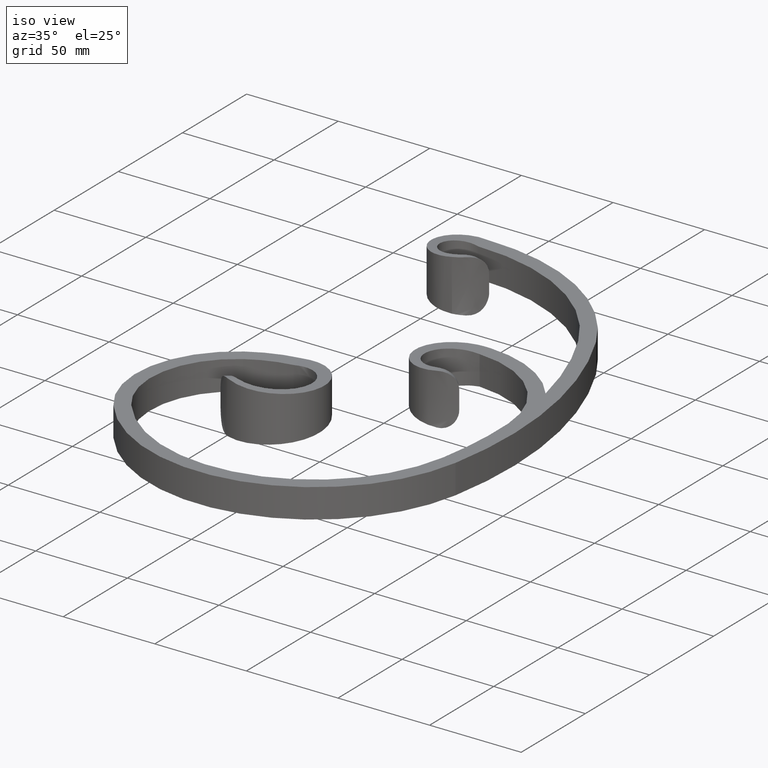
[diagram: clean part render]
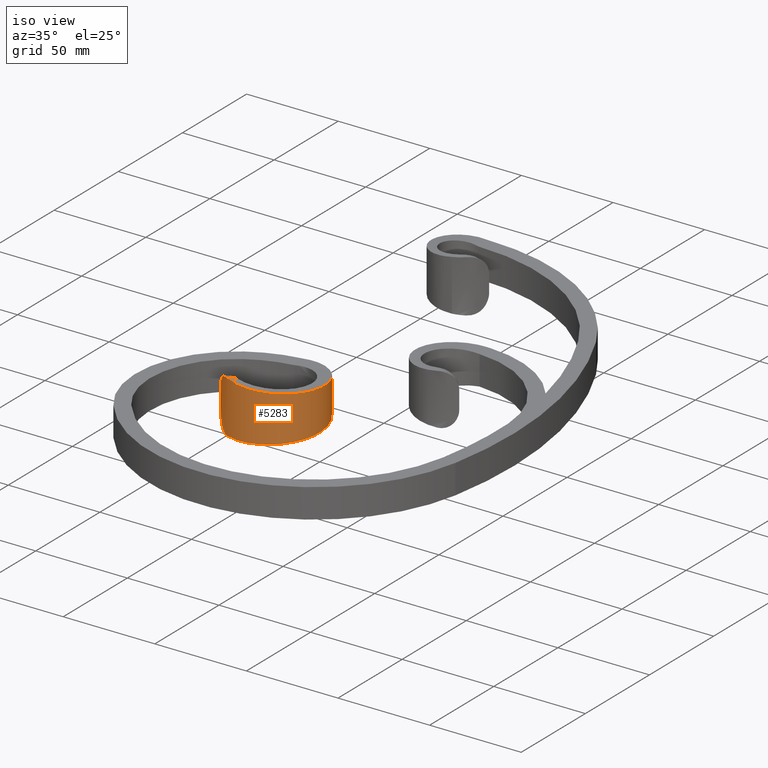
[diagram: same view with one face highlighted and labeled with its STEP entity id]
A machine part, iso view. The second image highlights one B-rep face of the part: STEP entity #5283.
In plain terms, the highlighted face is a freeform B-spline surface patch.
Its self-contained STEP definition (entity closure, byte-faithful):
#133 = CARTESIAN_POINT ( 'NONE',  ( -33.57802503120093718, -12.59550692411791850, -8.146049056091735352 ) ) ;
#175 = CARTESIAN_POINT ( 'NONE',  ( -16.58922973311246807, -57.15209682906560573, -12.37648792760983874 ) ) ;
#223 = CARTESIAN_POINT ( 'NONE',  ( -12.58456249546032701, -21.92146221588376775, -9.751548640448486793 ) ) ;
#318 = CARTESIAN_POINT ( 'NONE',  ( -7.389778684455293956, -40.35461719440599637, 11.06405389463266609 ) ) ;
#376 = CARTESIAN_POINT ( 'NONE',  ( -51.65111107797437029, -53.56969024216363096, -4.337172076613514449 ) ) ;
#398 = CARTESIAN_POINT ( 'NONE',  ( -7.482887672515622590, -33.82559137967507468, -10.62652855248155248 ) ) ;
#467 = EDGE_CURVE ( 'NONE', #5590, #12942, #11741, .T. ) ;
#487 = CARTESIAN_POINT ( 'NONE',  ( -33.57802503120093718, -12.59550692411791850, -8.146049056091735352 ) ) ;
#535 = CARTESIAN_POINT ( 'NONE',  ( -49.69771532654036861, -55.53008887871815347, 11.23744044811257226 ) ) ;
#635 = CARTESIAN_POINT ( 'NONE',  ( -51.38976015461346236, -53.83704935560363225, 7.064410662764352367 ) ) ;
#838 = CARTESIAN_POINT ( 'NONE',  ( -46.32424225235733672, -58.34129908344313264, -13.88447985391884920 ) ) ;
#880 = CARTESIAN_POINT ( 'NONE',  ( -51.60032325678813692, -53.62167709722110231, -5.723051855419111433 ) ) ;
#951 = CARTESIAN_POINT ( 'NONE',  ( -42.42558938902890731, -60.46293557177023814, 14.21490081822890694 ) ) ;
#1034 = CARTESIAN_POINT ( 'NONE',  ( -9.270810098169967262, -27.54592833835636512, 10.18907638484308364 ) ) ;
#1183 = CARTESIAN_POINT ( 'NONE',  ( -34.93879334652178414, -62.65775861665424884, -13.68900597043120904 ) ) ;
#1246 = CARTESIAN_POINT ( 'NONE',  ( -51.65111107797437739, -53.56969024216363806, 4.337172076613521554 ) ) ;
#1324 = CARTESIAN_POINT ( 'NONE',  ( -8.945702659626393327, -46.69526478340217324, 11.50150815269346616 ) ) ;
#1334 = EDGE_CURVE ( 'NONE', #12511, #10819, #10597, .T. ) ;
#1364 = CARTESIAN_POINT ( 'NONE',  ( -22.15981873790846635, -60.55987571485508880, -12.81401223314161797 ) ) ;
#1537 = CARTESIAN_POINT ( 'NONE',  ( -29.23358853215684050, -12.36335269155290284, -8.439188108444961145 ) ) ;
#1592 = CARTESIAN_POINT ( 'NONE',  ( -46.32395167996784124, -58.34149954532197313, 13.88458562790976636 ) ) ;
#1827 = CARTESIAN_POINT ( 'NONE',  ( -46.04441014813580324, -58.52884284513113045, -13.97483996255037830 ) ) ;
#1919 = CARTESIAN_POINT ( 'NONE',  ( -50.18416266541709803, -55.05439913324737944, -10.45028677107756643 ) ) ;
#1965 = CARTESIAN_POINT ( 'NONE',  ( -51.65111107797436318, -53.56969024216361674, -5.036296148332953138 ) ) ;
#2086 = CARTESIAN_POINT ( 'NONE',  ( -22.15981873790845214, -60.55987571485509591, 12.81401223314161797 ) ) ;
#2318 = CARTESIAN_POINT ( 'NONE',  ( -16.58922973311247517, -57.15209682906560573, 12.37648792760983874 ) ) ;
#2361 = ORIENTED_EDGE ( 'NONE', *, *, #3305, .T. ) ;
#2365 = CARTESIAN_POINT ( 'NONE',  ( -50.14052950395719677, -55.11539507971288998, -14.85438673154449951 ) ) ;
#2516 = EDGE_CURVE ( 'NONE', #12511, #9966, #13270, .T. ) ;
#2638 = DIRECTION ( 'NONE',  ( 0.000000000000000000, 0.000000000000000000, 1.000000000000000000 ) ) ;
#2713 = CARTESIAN_POINT ( 'NONE',  ( -43.03120126583589666, -60.18579818496611011, 14.25978458945053795 ) ) ;
#2796 = CARTESIAN_POINT ( 'NONE',  ( -47.12942327838260326, -57.77311632037795164, 13.56476221883439237 ) ) ;
#2878 = CARTESIAN_POINT ( 'NONE',  ( -43.66510377913966323, -59.89571456416294382, -14.30676506733341569 ) ) ;
#2946 = CARTESIAN_POINT ( 'NONE',  ( -17.24778867897662593, -17.34423786836316239, 9.314102502621468105 ) ) ;
#3014 = CARTESIAN_POINT ( 'NONE',  ( -51.38873243551046244, -53.83810034985869919, -7.069791083932366327 ) ) ;
#3021 = ORIENTED_EDGE ( 'NONE', *, *, #1334, .F. ) ;
#3049 = CARTESIAN_POINT ( 'NONE',  ( -50.14052950395720387, -55.11539507971288998, 14.85438673154449951 ) ) ;
#3094 = CARTESIAN_POINT ( 'NONE',  ( -41.28444365421606932, -61.19213476982351807, 14.12637287712167833 ) ) ;
#3279 = CARTESIAN_POINT ( 'NONE',  ( -17.24778867897662593, -17.34423786836316239, 9.314102502621468105 ) ) ;
#3305 = EDGE_CURVE ( 'NONE', #3439, #5590, #11931, .T. ) ;
#3325 = CARTESIAN_POINT ( 'NONE',  ( -9.270810098169967262, -27.54592833835636512, 10.18907638484308364 ) ) ;
#3380 = CARTESIAN_POINT ( 'NONE',  ( -28.40687138129084843, -62.45132643619107427, -13.25146469080638312 ) ) ;
#3429 = CARTESIAN_POINT ( 'NONE',  ( -7.389778684455301061, -40.35461719440599637, -11.06405389463266609 ) ) ;
#3439 = VERTEX_POINT ( 'NONE', #376 ) ;
#3475 = CARTESIAN_POINT ( 'NONE',  ( -35.74252970856243650, -12.71117184921621757, 7.999999999999998224 ) ) ;
#3746 = CARTESIAN_POINT ( 'NONE',  ( -49.52163755471740814, -55.69929994582214050, 11.48277636815653047 ) ) ;
#3900 = CARTESIAN_POINT ( 'NONE',  ( -48.95161631099333732, -56.23263187921923389, -12.16463710116658170 ) ) ;
#4017 = CARTESIAN_POINT ( 'NONE',  ( -16.58922973311246096, -57.15209682906561284, 12.37648792760983874 ) ) ;
#4037 = CARTESIAN_POINT ( 'NONE',  ( -49.52007537389950187, -55.70078549468676243, -11.48482998160070778 ) ) ;
#4067 = CARTESIAN_POINT ( 'NONE',  ( -22.15981873790845569, -60.55987571485509591, 12.81401223314161797 ) ) ;
#4082 = CARTESIAN_POINT ( 'NONE',  ( -51.15158491220703496, -54.08024678968892829, -8.059377528972271776 ) ) ;
#4159 = CARTESIAN_POINT ( 'NONE',  ( -34.93879334652176993, -62.65775861665427726, 13.68900597043121259 ) ) ;
#4204 = CARTESIAN_POINT ( 'NONE',  ( -12.09784961112606361, -52.41389592465710479, 11.93903229814728739 ) ) ;
#4255 = CARTESIAN_POINT ( 'NONE',  ( -51.65111107797437739, -53.56969024216363096, 15.00000000000000000 ) ) ;
#4401 = CARTESIAN_POINT ( 'NONE',  ( -12.09784961112606894, -52.41389592465710479, -11.93903229814728739 ) ) ;
#4491 = CARTESIAN_POINT ( 'NONE',  ( -34.93879334652178414, -62.65775861665424884, -13.68900597043120904 ) ) ;
#4497 = EDGE_CURVE ( 'NONE', #9966, #3439, #5631, .T. ) ;
#4506 = B_SPLINE_SURFACE_WITH_KNOTS ( 'NONE', 1, 3, ( 
 ( #4255, #3049, #6244, #3094, #4159, #11532, #2086, #2318, #7588, #1324, #318, #12870, #3325, #6566, #3279, #6521, #11906, #7682, #3475 ),
 ( #9698, #2365, #4548, #11865, #1183, #3380, #1364, #175, #4401, #5418, #3429, #8698, #11716, #223, #9749, #5511, #12918, #133, #10759 ) ),
 .UNSPECIFIED., .F., .F., .F.,
 ( 2, 2 ),
 ( 4, 1, 1, 1, 1, 1, 1, 1, 1, 1, 1, 1, 1, 1, 1, 1, 4 ),
 ( 0.000000000000000000, 1.000000000000000000 ),
 ( 0.000000000000000000, 0.06578038003364708453, 0.1311041039287538235, 0.1960029423599547738, 0.2604628809791652011, 0.3244895749311803579, 0.3880773804705942576, 0.4512321079147543212, 0.5139479616482263147, 0.5762309114961822187, 0.6380750062848293824, 0.6994863895189032954, 0.7604589409083903906, 0.8209989876387825403, 0.8811002311339174442, 0.9407612227950703510, 1.000000000000000000 ),
 .UNSPECIFIED. ) ;
#4542 = CARTESIAN_POINT ( 'NONE',  ( -22.91004152761001578, -14.12384657492264139, -8.876577550080872570 ) ) ;
#4548 = CARTESIAN_POINT ( 'NONE',  ( -47.12985301392313175, -58.19607426644882509, -14.56417106129098826 ) ) ;
#4721 = CARTESIAN_POINT ( 'NONE',  ( -35.74252970856243650, -12.71117184921621757, -7.999999999999998224 ) ) ;
#4767 = CARTESIAN_POINT ( 'NONE',  ( -50.03038046193676536, -55.20626300641914241, 10.71888026741935995 ) ) ;
#4810 = CARTESIAN_POINT ( 'NONE',  ( -43.03120126583587535, -60.18579818496609590, -14.25978458945053440 ) ) ;
#4965 = VECTOR ( 'NONE', #9331, 1000.000000000000000 ) ;
#4969 = CARTESIAN_POINT ( 'NONE',  ( -50.02744026462465143, -55.20914693026994513, -10.72374979378077420 ) ) ;
#5132 = CARTESIAN_POINT ( 'NONE',  ( -7.389778684455293956, -40.35461719440599637, 11.06405389463266609 ) ) ;
#5150 = CARTESIAN_POINT ( 'NONE',  ( -50.61612990117857436, -54.62438412711950519, -9.606162419489397308 ) ) ;
#5181 = CARTESIAN_POINT ( 'NONE',  ( -12.58456249546032701, -21.92146221588375710, 9.751548640448486793 ) ) ;
#5226 = CARTESIAN_POINT ( 'NONE',  ( -29.23358853215684050, -12.36335269155290462, 8.439188108444961145 ) ) ;
#5283 = ADVANCED_FACE ( 'NONE', ( #8113 ), #4506, .T. ) ;
#5418 = CARTESIAN_POINT ( 'NONE',  ( -8.945702659626400433, -46.69526478340217324, -11.50150815269346616 ) ) ;
#5511 = CARTESIAN_POINT ( 'NONE',  ( -22.91004152761001578, -14.12384657492264139, -8.876577550080872570 ) ) ;
#5590 = VERTEX_POINT ( 'NONE', #4810 ) ;
#5631 = LINE ( 'NONE', #10357, #4965 ) ;
#5636 = CARTESIAN_POINT ( 'NONE',  ( -7.389778684455301061, -40.35461719440599637, -11.06405389463266609 ) ) ;
#5783 = CARTESIAN_POINT ( 'NONE',  ( -48.53574988930402156, -56.60646299001678017, 12.57251210564871791 ) ) ;
#5833 = CARTESIAN_POINT ( 'NONE',  ( -50.85828119142266246, -54.37868623472515139, 9.004805861246554244 ) ) ;
#5881 = CARTESIAN_POINT ( 'NONE',  ( -43.66511602782529877, -59.89570895897440295, 14.30676597512143466 ) ) ;
#5915 = ORIENTED_EDGE ( 'NONE', *, *, #467, .T. ) ;
#5965 = CARTESIAN_POINT ( 'NONE',  ( -45.46771584236165609, -58.89499453847879806, 14.12134407233585343 ) ) ;
#6042 = CARTESIAN_POINT ( 'NONE',  ( -48.31467618011459564, -56.80010543915676635, -12.76389281942718590 ) ) ;
#6057 = CARTESIAN_POINT ( 'NONE',  ( -51.65111107797437739, -53.56969024216363806, 4.337172076613521554 ) ) ;
#6200 = CARTESIAN_POINT ( 'NONE',  ( -39.80956800831938835, -61.53277959153943755, 14.02471870966516576 ) ) ;
#6215 = CARTESIAN_POINT ( 'NONE',  ( -51.65111107797437029, -53.56969024216363096, -4.337172076613514449 ) ) ;
#6244 = CARTESIAN_POINT ( 'NONE',  ( -47.12985301392313175, -58.19607426644882509, 14.56417106129099359 ) ) ;
#6282 = CARTESIAN_POINT ( 'NONE',  ( -22.91004152761001578, -14.12384657492263962, 8.876577550080872570 ) ) ;
#6494 = EDGE_LOOP ( 'NONE', ( #13082, #2361, #5915, #12546, #3021, #11311 ) ) ;
#6521 = CARTESIAN_POINT ( 'NONE',  ( -22.91004152761001578, -14.12384657492263962, 8.876577550080872570 ) ) ;
#6566 = CARTESIAN_POINT ( 'NONE',  ( -12.58456249546032701, -21.92146221588375710, 9.751548640448486793 ) ) ;
#6695 = CARTESIAN_POINT ( 'NONE',  ( -22.15981873790846635, -60.55987571485508880, -12.81401223314161797 ) ) ;
#6737 = CARTESIAN_POINT ( 'NONE',  ( -17.24778867897662593, -17.34423786836316239, -9.314102502621468105 ) ) ;
#6927 = CARTESIAN_POINT ( 'NONE',  ( -51.24110454385249369, -53.98889037599329299, 7.724087325586279640 ) ) ;
#7015 = CARTESIAN_POINT ( 'NONE',  ( -47.62421800491791402, -57.38308605822610531, 13.28585943230583410 ) ) ;
#7127 = CARTESIAN_POINT ( 'NONE',  ( -51.23902106977845250, -53.99101721562937684, -7.732495953222609408 ) ) ;
#7204 = CARTESIAN_POINT ( 'NONE',  ( -35.74252970856243650, -12.71117184921621224, 7.999999999999998224 ) ) ;
#7388 = LINE ( 'NONE', #8930, #12996 ) ;
#7588 = CARTESIAN_POINT ( 'NONE',  ( -12.09784961112605828, -52.41389592465710479, 11.93903229814728739 ) ) ;
#7682 = CARTESIAN_POINT ( 'NONE',  ( -33.57802503120093718, -12.59550692411791850, 8.146049056091735352 ) ) ;
#7758 = CARTESIAN_POINT ( 'NONE',  ( -9.270810098169972591, -27.54592833835636156, -10.18907638484308364 ) ) ;
#7847 = CARTESIAN_POINT ( 'NONE',  ( -35.74252970856243650, -12.71117184921621757, -7.999999999999998224 ) ) ;
#7898 = CARTESIAN_POINT ( 'NONE',  ( -44.28057228360417241, -59.58120849345448278, 14.29377872933465632 ) ) ;
#7990 = CARTESIAN_POINT ( 'NONE',  ( -51.45154824136530891, -53.77385692579682797, 6.731249855395117443 ) ) ;
#8113 = FACE_OUTER_BOUND ( 'NONE', #6494, .T. ) ;
#8149 = CARTESIAN_POINT ( 'NONE',  ( -47.62415811056440873, -57.38313669615384782, -13.28590494145513290 ) ) ;
#8194 = CARTESIAN_POINT ( 'NONE',  ( -47.12940431498353888, -57.77312053451556295, -13.56475053502450656 ) ) ;
#8244 = CARTESIAN_POINT ( 'NONE',  ( -50.85685575519531199, -54.38012969642286976, -9.008275531121539004 ) ) ;
#8698 = CARTESIAN_POINT ( 'NONE',  ( -7.482887672515622590, -33.82559137967507468, -10.62652855248155248 ) ) ;
#8733 = CARTESIAN_POINT ( 'NONE',  ( -28.40687138129084843, -62.45132643619107427, -13.25146469080638312 ) ) ;
#8767 = CARTESIAN_POINT ( 'NONE',  ( -35.74252970856243650, -12.71117184921621224, 7.999999999999998224 ) ) ;
#8930 = CARTESIAN_POINT ( 'NONE',  ( -35.74252970856243650, -12.71117184921621757, -7.999999999999998224 ) ) ;
#8959 = CARTESIAN_POINT ( 'NONE',  ( -45.17458707877819535, -59.07132261474132662, 14.17672747873761985 ) ) ;
#9137 = CARTESIAN_POINT ( 'NONE',  ( -48.31464373914333521, -56.80013286372813042, 12.76391745923927701 ) ) ;
#9199 = CARTESIAN_POINT ( 'NONE',  ( -45.46810912897819179, -58.89475636747481957, -14.12126670769739967 ) ) ;
#9244 = CARTESIAN_POINT ( 'NONE',  ( -45.17488329144869397, -59.07114919141156406, -14.17668034118320541 ) ) ;
#9272 = CARTESIAN_POINT ( 'NONE',  ( -34.93879334652176993, -62.65775861665427726, 13.68900597043120904 ) ) ;
#9331 = DIRECTION ( 'NONE',  ( 2.312964634635742957E-16, 2.312964634635742957E-16, -1.000000000000000000 ) ) ;
#9698 = CARTESIAN_POINT ( 'NONE',  ( -51.65111107797437029, -53.56969024216362385, -15.00000000000000000 ) ) ;
#9743 = CARTESIAN_POINT ( 'NONE',  ( -42.42558938902889309, -60.46293557177023104, -14.21490081822890694 ) ) ;
#9749 = CARTESIAN_POINT ( 'NONE',  ( -17.24778867897662593, -17.34423786836316239, -9.314102502621468105 ) ) ;
#9966 = VERTEX_POINT ( 'NONE', #1246 ) ;
#9970 = CARTESIAN_POINT ( 'NONE',  ( -12.58456249546032701, -21.92146221588376775, -9.751548640448486793 ) ) ;
#10112 = CARTESIAN_POINT ( 'NONE',  ( -48.95210686111648357, -56.23218655010128941, 12.16413426860427016 ) ) ;
#10220 = CARTESIAN_POINT ( 'NONE',  ( -49.14802386230027764, -56.05109086419003006, -11.94701471438898643 ) ) ;
#10250 = CARTESIAN_POINT ( 'NONE',  ( -43.03120126583589666, -60.18579818496611011, 14.25978458945053795 ) ) ;
#10266 = CARTESIAN_POINT ( 'NONE',  ( -43.03120126583587535, -60.18579818496609590, -14.25978458945053440 ) ) ;
#10357 = CARTESIAN_POINT ( 'NONE',  ( -51.65111107797437029, -53.56969024216362385, -15.00000000000000000 ) ) ;
#10362 = CARTESIAN_POINT ( 'NONE',  ( -49.69571445909393503, -55.53201440248623300, -11.24026878157675924 ) ) ;
#10388 = CARTESIAN_POINT ( 'NONE',  ( -8.945702659626393327, -46.69526478340217324, 11.50150815269346616 ) ) ;
#10597 = B_SPLINE_CURVE_WITH_KNOTS ( 'NONE', 3,
 ( #12495, #951, #6200, #9272, #11434, #4067, #4017, #4204, #10388, #5132, #13561, #1034, #5181, #2946, #6282, #5226, #12585, #7204 ),
 .UNSPECIFIED., .F., .F.,
 ( 4, 1, 1, 1, 1, 1, 1, 1, 1, 1, 1, 1, 1, 1, 1, 4 ),
 ( 0.1110290882674816043, 0.1311041039287538235, 0.1960029423599547738, 0.2604628809791652011, 0.3244895749311803579, 0.3880773804705942576, 0.4512321079147542657, 0.5139479616482263147, 0.5762309114961823298, 0.6380750062848293824, 0.6994863895189032954, 0.7604589409083903906, 0.8209989876387825403, 0.8811002311339174442, 0.9407612227950703510, 1.000000000000000000 ),
 .UNSPECIFIED. ) ;
#10751 = CARTESIAN_POINT ( 'NONE',  ( -43.03120126583587535, -60.18579818496609590, -14.25978458945053440 ) ) ;
#10759 = CARTESIAN_POINT ( 'NONE',  ( -35.74252970856243650, -12.71117184921621757, -7.999999999999998224 ) ) ;
#10804 = CARTESIAN_POINT ( 'NONE',  ( -39.80956800831937414, -61.53277959153942334, -14.02471870966516576 ) ) ;
#10819 = VERTEX_POINT ( 'NONE', #8767 ) ;
#11107 = CARTESIAN_POINT ( 'NONE',  ( -50.18663952863378341, -55.05194555639108955, 10.44575296666078579 ) ) ;
#11311 = ORIENTED_EDGE ( 'NONE', *, *, #2516, .T. ) ;
#11406 = CARTESIAN_POINT ( 'NONE',  ( -44.28063635270517295, -59.58118091492604407, -14.29378704197588412 ) ) ;
#11434 = CARTESIAN_POINT ( 'NONE',  ( -28.40687138129085909, -62.45132643619106716, 13.25146469080638312 ) ) ;
#11532 = CARTESIAN_POINT ( 'NONE',  ( -28.40687138129085909, -62.45132643619106716, 13.25146469080638312 ) ) ;
#11716 = CARTESIAN_POINT ( 'NONE',  ( -9.270810098169972591, -27.54592833835636156, -10.18907638484308364 ) ) ;
#11741 = B_SPLINE_CURVE_WITH_KNOTS ( 'NONE', 3,
 ( #10751, #9743, #10804, #4491, #8733, #6695, #13000, #12955, #13140, #5636, #398, #7758, #9970, #6737, #4542, #1537, #487, #7847 ),
 .UNSPECIFIED., .F., .F.,
 ( 4, 1, 1, 1, 1, 1, 1, 1, 1, 1, 1, 1, 1, 1, 1, 4 ),
 ( 0.1110290882674817847, 0.1311041039287538235, 0.1960029423599547460, 0.2604628809791652011, 0.3244895749311803579, 0.3880773804705942576, 0.4512321079147543212, 0.5139479616482263147, 0.5762309114961822187, 0.6380750062848293824, 0.6994863895189032954, 0.7604589409083903906, 0.8209989876387825403, 0.8811002311339174442, 0.9407612227950703510, 1.000000000000000000 ),
 .UNSPECIFIED. ) ;
#11865 = CARTESIAN_POINT ( 'NONE',  ( -41.28444365421606221, -61.19213476982351096, -14.12637287712170142 ) ) ;
#11906 = CARTESIAN_POINT ( 'NONE',  ( -29.23358853215684050, -12.36335269155290284, 8.439188108444961145 ) ) ;
#11931 = B_SPLINE_CURVE_WITH_KNOTS ( 'NONE', 3,
 ( #6215, #1965, #880, #13492, #3014, #7127, #4082, #8244, #5150, #1919, #4969, #10362, #4037, #10220, #3900, #12332, #6042, #8149, #8194, #838, #1827, #9199, #9244, #11406, #2878, #10266 ),
 .UNSPECIFIED., .F., .F.,
 ( 4, 2, 2, 2, 2, 2, 2, 2, 2, 2, 2, 2, 4 ),
 ( 0.000000000000000000, 0.002067644712977322573, 0.003101467069465986028, 0.004135289425954648615, 0.006202934138931970320, 0.007236756495420627704, 0.008270578851909285087, 0.009304401208397943338, 0.01033822356488659985, 0.01240586827786391462, 0.01343969063435256767, 0.01447351299084122071, 0.01654115770381850425 ),
 .UNSPECIFIED. ) ;
#12135 = CARTESIAN_POINT ( 'NONE',  ( -50.61737094028173090, -54.62312424905209696, 9.603117936609766758 ) ) ;
#12219 = CARTESIAN_POINT ( 'NONE',  ( -51.60031777972184841, -53.62168248030709350, 5.722037086848396292 ) ) ;
#12332 = CARTESIAN_POINT ( 'NONE',  ( -48.53570084719752487, -56.60650271174890236, -12.57253849633016252 ) ) ;
#12495 = CARTESIAN_POINT ( 'NONE',  ( -43.03120126583589666, -60.18579818496611011, 14.25978458945053795 ) ) ;
#12511 = VERTEX_POINT ( 'NONE', #10250 ) ;
#12546 = ORIENTED_EDGE ( 'NONE', *, *, #13529, .T. ) ;
#12585 = CARTESIAN_POINT ( 'NONE',  ( -33.57802503120093718, -12.59550692411791495, 8.146049056091735352 ) ) ;
#12870 = CARTESIAN_POINT ( 'NONE',  ( -7.482887672515619037, -33.82559137967507468, 10.62652855248155248 ) ) ;
#12918 = CARTESIAN_POINT ( 'NONE',  ( -29.23358853215684050, -12.36335269155290284, -8.439188108444961145 ) ) ;
#12942 = VERTEX_POINT ( 'NONE', #4721 ) ;
#12955 = CARTESIAN_POINT ( 'NONE',  ( -12.09784961112606894, -52.41389592465710479, -11.93903229814728739 ) ) ;
#12996 = VECTOR ( 'NONE', #2638, 1000.000000000000000 ) ;
#13000 = CARTESIAN_POINT ( 'NONE',  ( -16.58922973311246807, -57.15209682906560573, -12.37648792760983874 ) ) ;
#13082 = ORIENTED_EDGE ( 'NONE', *, *, #4497, .T. ) ;
#13140 = CARTESIAN_POINT ( 'NONE',  ( -8.945702659626400433, -46.69526478340217324, -11.50150815269346616 ) ) ;
#13148 = CARTESIAN_POINT ( 'NONE',  ( -49.14883114374566730, -56.05034535115917294, 11.94612412378353383 ) ) ;
#13244 = CARTESIAN_POINT ( 'NONE',  ( -51.15362632112243801, -54.07816618525251329, 8.052237427325247054 ) ) ;
#13270 = B_SPLINE_CURVE_WITH_KNOTS ( 'NONE', 3,
 ( #2713, #5881, #7898, #8959, #5965, #13337, #1592, #2796, #7015, #9137, #5783, #10112, #13148, #3746, #535, #4767, #11107, #12135, #5833, #13244, #6927, #635, #7990, #12219, #13552, #6057 ),
 .UNSPECIFIED., .F., .F.,
 ( 4, 2, 2, 2, 2, 2, 2, 2, 2, 2, 2, 2, 4 ),
 ( 0.000000000000000000, 0.002069790991009052769, 0.003104686486513584358, 0.004139581982018115947, 0.006209372973027179124, 0.007244268468531725458, 0.008279163964036271792, 0.009314059459540816391, 0.01034895495504535926, 0.01241874594605443284, 0.01345364144155896530, 0.01448853693706349775, 0.01655832792807256440 ),
 .UNSPECIFIED. ) ;
#13337 = CARTESIAN_POINT ( 'NONE',  ( -46.04378511861119705, -58.52925121801217045, 13.97502129215104105 ) ) ;
#13492 = CARTESIAN_POINT ( 'NONE',  ( -51.45086523955852442, -53.77455544913450325, -6.735353593472073186 ) ) ;
#13529 = EDGE_CURVE ( 'NONE', #12942, #10819, #7388, .T. ) ;
#13552 = CARTESIAN_POINT ( 'NONE',  ( -51.65111107797432055, -53.56969024216365227, 5.036362554010572978 ) ) ;
#13561 = CARTESIAN_POINT ( 'NONE',  ( -7.482887672515619037, -33.82559137967507468, 10.62652855248155248 ) ) ;